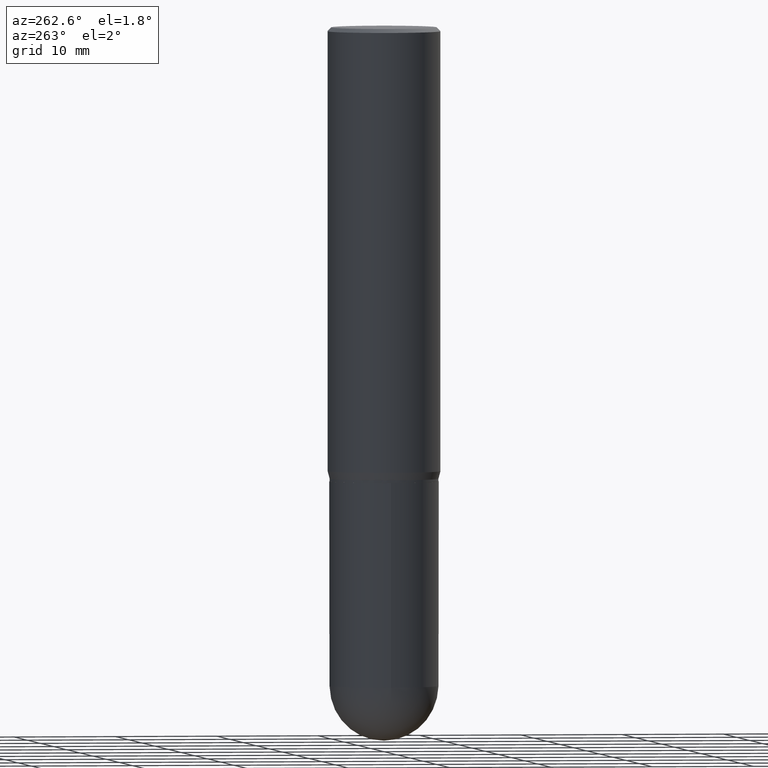
[diagram: clean part render]
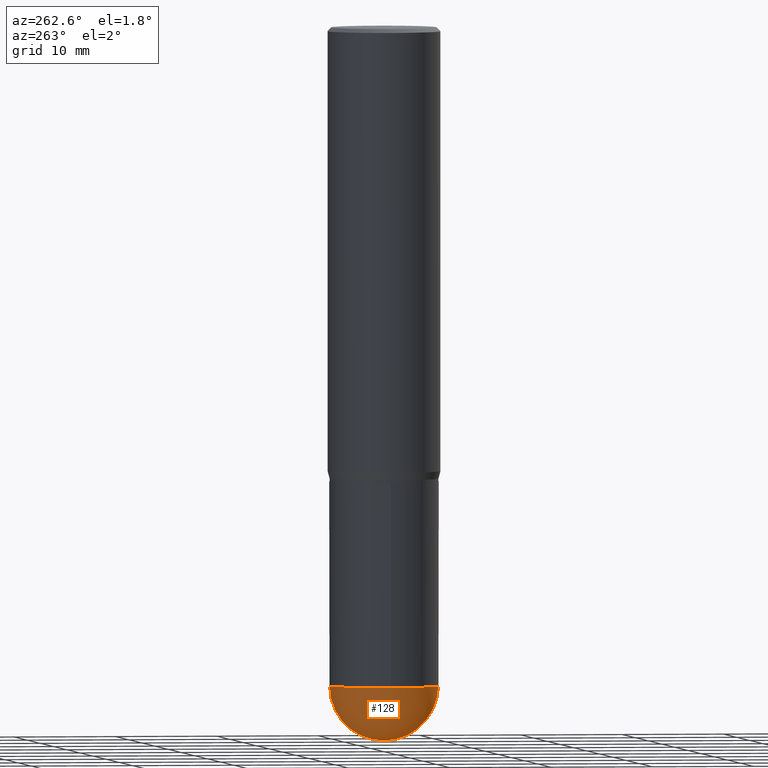
[diagram: same view with one face highlighted and labeled with its STEP entity id]
A machine part, auxiliary view. The second image highlights one B-rep face of the part: STEP entity #128.
In plain terms, the highlighted spherical surface has radius 5.3581 mm.
Its self-contained STEP definition (entity closure, byte-faithful):
#30 = DIRECTION ( 'NONE',  ( 6.982962677686265922E-15, 1.000000000000000000, 0.000000000000000000 ) ) ;
#36 = EDGE_LOOP ( 'NONE', ( #428, #177, #207, #135 ) ) ;
#49 = AXIS2_PLACEMENT_3D ( 'NONE', #360, #453, #363 ) ;
#56 = FACE_OUTER_BOUND ( 'NONE', #36, .T. ) ;
#77 = CARTESIAN_POINT ( 'NONE',  ( -0.2109500000000000541, -5.988679117096665555E-15, -2.539050000000000473 ) ) ;
#93 = CARTESIAN_POINT ( 'NONE',  ( -1.498889901085869604E-15, -0.2109500000000089637, -2.539049999999999585 ) ) ;
#103 = CARTESIAN_POINT ( 'NONE',  ( 6.191127839474132236E-29, -8.890879617617701491E-15, -2.539049999999999585 ) ) ;
#111 = VERTEX_POINT ( 'NONE', #93 ) ;
#112 = VERTEX_POINT ( 'NONE', #333 ) ;
#118 = CARTESIAN_POINT ( 'NONE',  ( 6.209167572344372023E-29, -8.865045693389689499E-15, -2.539050000000000473 ) ) ;
#128 = ADVANCED_FACE ( 'NONE', ( #56 ), #206, .T. ) ;
#135 = ORIENTED_EDGE ( 'NONE', *, *, #498, .F. ) ;
#157 = CIRCLE ( 'NONE', #353, 0.2109500000000001096 ) ;
#164 = CIRCLE ( 'NONE', #49, 0.2109500000000000541 ) ;
#171 = EDGE_CURVE ( 'NONE', #419, #111, #164, .T. ) ;
#177 = ORIENTED_EDGE ( 'NONE', *, *, #377, .T. ) ;
#206 = SPHERICAL_SURFACE ( 'NONE', #413, 0.2109500000000001096 ) ;
#207 = ORIENTED_EDGE ( 'NONE', *, *, #171, .F. ) ;
#268 = AXIS2_PLACEMENT_3D ( 'NONE', #342, #503, #30 ) ;
#273 = DIRECTION ( 'NONE',  ( 1.000000000000000000, -6.982962677686265133E-15, 0.000000000000000000 ) ) ;
#317 = VERTEX_POINT ( 'NONE', #340 ) ;
#318 = EDGE_CURVE ( 'NONE', #112, #317, #404, .T. ) ;
#333 = CARTESIAN_POINT ( 'NONE',  ( 6.716019350574006308E-29, -9.614490643932656644E-15, -2.750000000000000000 ) ) ;
#340 = CARTESIAN_POINT ( 'NONE',  ( 1.473055976857980082E-15, 0.2109499999999912001, -2.539050000000000917 ) ) ;
#342 = CARTESIAN_POINT ( 'NONE',  ( 6.191127839474132236E-29, -8.890879617617701491E-15, -2.539049999999999585 ) ) ;
#353 = AXIS2_PLACEMENT_3D ( 'NONE', #103, #462, #423 ) ;
#360 = CARTESIAN_POINT ( 'NONE',  ( 6.209167572344372023E-29, -8.865045693389689499E-15, -2.539050000000000473 ) ) ;
#363 = DIRECTION ( 'NONE',  ( 1.000000000000000000, -6.982962677686265133E-15, 0.000000000000000000 ) ) ;
#372 = DIRECTION ( 'NONE',  ( -1.000000000000000000, 6.982962677686265133E-15, -4.883557194083112340E-29 ) ) ;
#377 = EDGE_CURVE ( 'NONE', #112, #111, #157, .T. ) ;
#404 = CIRCLE ( 'NONE', #268, 0.2109500000000001096 ) ;
#408 = CARTESIAN_POINT ( 'NONE',  ( 6.191127839474132236E-29, -8.890879617617701491E-15, -2.539049999999999585 ) ) ;
#413 = AXIS2_PLACEMENT_3D ( 'NONE', #408, #372, #483 ) ;
#419 = VERTEX_POINT ( 'NONE', #77 ) ;
#423 = DIRECTION ( 'NONE',  ( -7.105427357601001070E-15, -1.000000000000000000, 0.000000000000000000 ) ) ;
#428 = ORIENTED_EDGE ( 'NONE', *, *, #318, .F. ) ;
#453 = DIRECTION ( 'NONE',  ( -2.445468806185136597E-29, 3.491481338843145583E-15, 1.000000000000000000 ) ) ;
#462 = DIRECTION ( 'NONE',  ( -1.000000000000000000, 7.105427357601001070E-15, -4.926315508542082329E-29 ) ) ;
#464 = AXIS2_PLACEMENT_3D ( 'NONE', #118, #510, #273 ) ;
#482 = CIRCLE ( 'NONE', #464, 0.2109500000000000541 ) ;
#483 = DIRECTION ( 'NONE',  ( 6.982962677686265133E-15, 1.000000000000000000, -2.590043132177541277E-15 ) ) ;
#498 = EDGE_CURVE ( 'NONE', #317, #419, #482, .T. ) ;
#503 = DIRECTION ( 'NONE',  ( 1.000000000000000000, -6.982962677686265922E-15, 4.883557194083112340E-29 ) ) ;
#510 = DIRECTION ( 'NONE',  ( -2.445468806185136597E-29, 3.491481338843145583E-15, 1.000000000000000000 ) ) ;